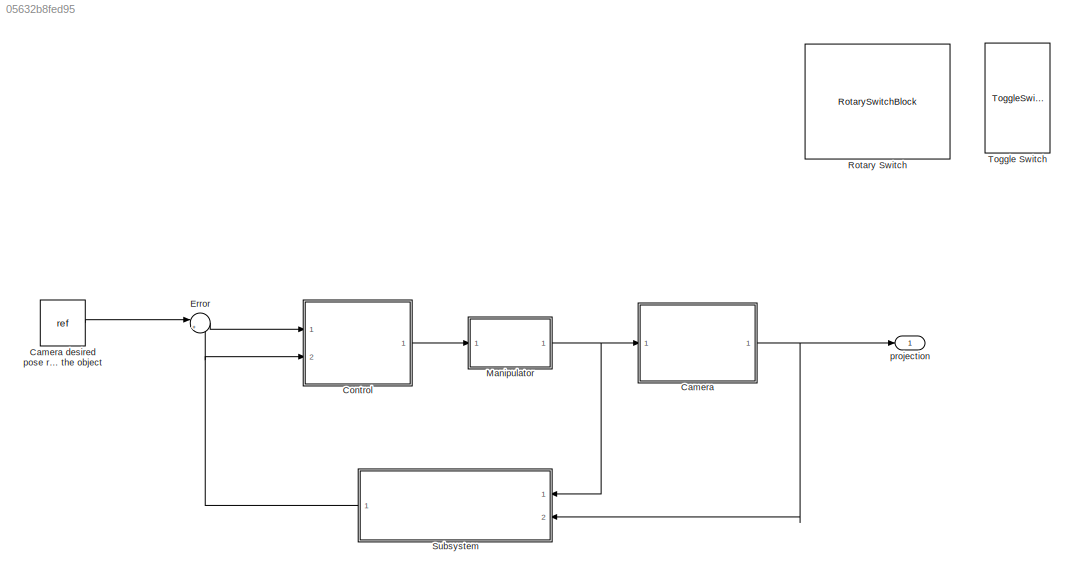
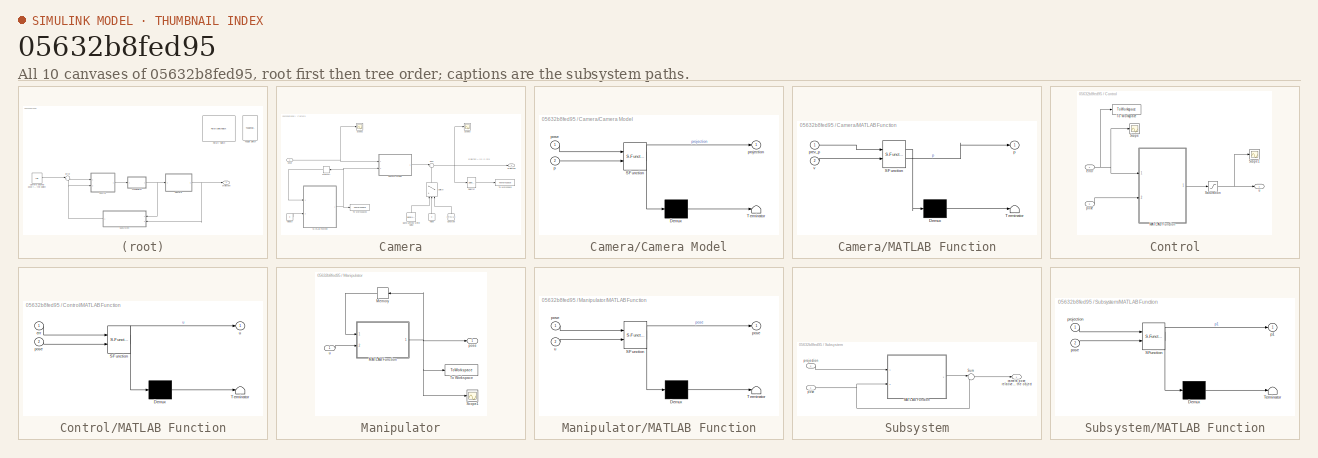
[diagram: thumbnail index - all 10 canvases of the model, root first then tree order]
MODEL slx_05632b8fed95
KIND model
CONFIG AbsTol = auto
CONFIG EnableMultiTasking = off
CONFIG FixedStep = auto
CONFIG MaxStep = auto
CONFIG MinStep = auto
CONFIG RelTol = 1e-3
CONFIG SampleTimeConstraint = Unconstrained
CONFIG SolverName = VariableStepAuto
CONFIG StartTime = 0.0
CONFIG StopTime = 10
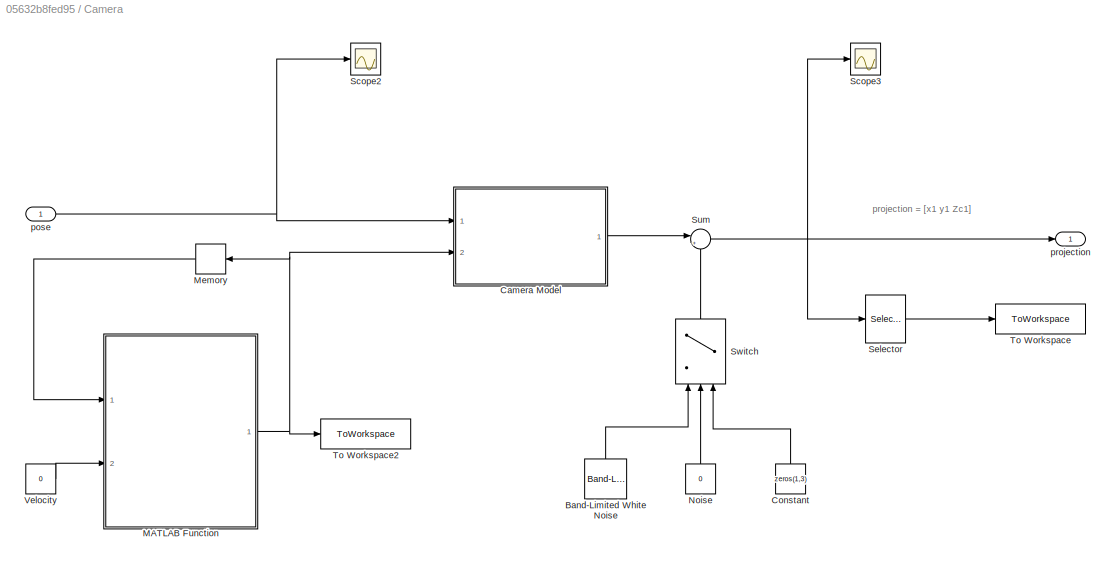
BLOCK [SubSystem] Camera
  Ports = [1, 1]
  RequestExecContextInheritance = off
BLOCK [Constant] Camera desired pose relative to the object
  SampleTime = -1
  Value = ref
BLOCK [Reference] Camera/Band-Limited White Noise  REF=simulink/Sources/Band-Limited
White Noise
  NameLocation = right
  Ports = [0, 1]
  SourceBlock = simulink/Sources/Band-Limited\nWhite Noise
  SourceProductBaseCode = SL
  SourceType = Band-Limited White Noise.
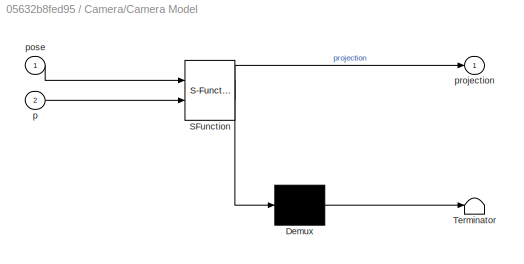
BLOCK [SubSystem] Camera/Camera Model
  ErrorFcn = Stateflow.Translate.translate
  PermitHierarchicalResolution = ExplicitOnly
  Ports = [2, 1]
  RequestExecContextInheritance = off
  SFBlockType = MATLAB Function
  TreatAsAtomicUnit = on
BLOCK [Demux] Camera/Camera Model/ Demux 
  Outputs = 1
  Ports = [1, 1]
BLOCK [S-Function] Camera/Camera Model/ SFunction 
  EnableBusSupport = on
  FunctionName = sf_sfun
  Parameters = O,f
  PortCounts = [2 2]
  Ports = [2, 2]
  SFcnIsStateOwnerBlock = off
  SFunctionDeploymentMode = off
  Tag = Stateflow S-Function 2
BLOCK [Terminator] Camera/Camera Model/ Terminator 
BLOCK [Inport] Camera/Camera Model/p
  Port = 2
BLOCK [Inport] Camera/Camera Model/pose
BLOCK [Outport] Camera/Camera Model/projection
BLOCK [Constant] Camera/Constant
  NameLocation = right
  Value = zeros(1,3)
BLOCK [SubSystem] Camera/MATLAB Function
  ErrorFcn = Stateflow.Translate.translate
  PermitHierarchicalResolution = ExplicitOnly
  Ports = [2, 1]
  RequestExecContextInheritance = off
  SFBlockType = MATLAB Function
  SystemSampleTime = dT
  TreatAsAtomicUnit = on
BLOCK [Demux] Camera/MATLAB Function/ Demux 
  Outputs = 1
  Ports = [1, 1]
BLOCK [S-Function] Camera/MATLAB Function/ SFunction 
  EnableBusSupport = on
  FunctionName = sf_sfun
  Parameters = dT
  PortCounts = [2 2]
  Ports = [2, 2]
  SFcnIsStateOwnerBlock = off
  SFunctionDeploymentMode = off
  Tag = Stateflow S-Function 4
BLOCK [Terminator] Camera/MATLAB Function/ Terminator 
BLOCK [Outport] Camera/MATLAB Function/p
BLOCK [Inport] Camera/MATLAB Function/prev_p
BLOCK [Inport] Camera/MATLAB Function/v
  Port = 2
BLOCK [Memory] Camera/Memory
  InitialCondition = [p1]
  NameLocation = top
BLOCK [Constant] Camera/Noise
  NameLocation = right
  Value = 0
BLOCK [Scope] Camera/Scope2
  Floating = off
  NumInputPorts = 1
  Ports = [1]
  ScopeSpecificationString = Simulink.scopes.TimeScopeBlockCfg('CurrentConfiguration', extmgr.ConfigurationSet(extmgr.Configuration('Core','General UI',true),extmgr.Configuration('Core','Source UI',true),extmgr.Configuration('Sources','WiredSimulink',true,'DataLoggingVariableName','ScopeData3'),extmgr.Configuration('Visuals','Time Domain',true,'SerializedDisplays',{struct('MinYLimReal','-1.12077','MaxYLimReal','2.54863','YLab...<+1410ch>
BLOCK [Scope] Camera/Scope3
  Floating = off
  NumInputPorts = 1
  Ports = [1]
  ScopeSpecificationString = Simulink.scopes.TimeScopeBlockCfg('CurrentConfiguration', extmgr.ConfigurationSet(extmgr.Configuration('Core','General UI',true),extmgr.Configuration('Core','Source UI',true),extmgr.Configuration('Sources','WiredSimulink',true,'DataLoggingVariableName','ScopeData3'),extmgr.Configuration('Visuals','Time Domain',true,'SerializedDisplays',{struct('MinYLimReal','-0.63244','MaxYLimReal','3.15932','YLab...<+1568ch>
BLOCK [Selector] Camera/Selector
  IndexOptions = Index vector (dialog)
  Indices = [1 2]
  InputPortWidth = 3
  OutputSizes = 1
  Ports = [1, 1]
BLOCK [Sum] Camera/Sum
  Inputs = |++
  Ports = [2, 1]
BLOCK [Switch] Camera/Switch
  Criteria = u2 > Threshold
  InputSameDT = off
  NameLocation = right
  SaturateOnIntegerOverflow = off
BLOCK [ToWorkspace] Camera/To Workspace
  FixptAsFi = on
  MaxDataPoints = inf
  Ports = [1]
  SampleTime = 0.1
  VariableName = proj1
BLOCK [ToWorkspace] Camera/To Workspace2
  FixptAsFi = on
  MaxDataPoints = inf
  Ports = [1]
  SampleTime = 0.1
  VariableName = p
BLOCK [Constant] Camera/Velocity
  SampleTime = dT
  Value = 0
BLOCK [Inport] Camera/pose
BLOCK [Outport] Camera/projection
BLOCK [SubSystem] Control
  Ports = [2, 1]
  RequestExecContextInheritance = off
BLOCK [SubSystem] Control/MATLAB Function
  ErrorFcn = Stateflow.Translate.translate
  PermitHierarchicalResolution = ExplicitOnly
  Ports = [2, 1]
  RequestExecContextInheritance = off
  SFBlockType = MATLAB Function
  SystemSampleTime = 1/200
  TreatAsAtomicUnit = on
BLOCK [Demux] Control/MATLAB Function/ Demux 
  Outputs = 1
  Ports = [1, 1]
BLOCK [S-Function] Control/MATLAB Function/ SFunction 
  EnableBusSupport = on
  FunctionName = sf_sfun
  Parameters = Kp,ref
  PortCounts = [2 2]
  Ports = [2, 2]
  SFcnIsStateOwnerBlock = off
  SFunctionDeploymentMode = off
  Tag = Stateflow S-Function 1
BLOCK [Terminator] Control/MATLAB Function/ Terminator 
BLOCK [Inport] Control/MATLAB Function/err
BLOCK [Inport] Control/MATLAB Function/pose
  Port = 2
BLOCK [Outport] Control/MATLAB Function/u
BLOCK [Saturate] Control/Saturation
BLOCK [Scope] Control/Scope
  Floating = off
  NumInputPorts = 1
  Ports = [1]
  ScopeSpecificationString = Simulink.scopes.TimeScopeBlockCfg('CurrentConfiguration', extmgr.ConfigurationSet(extmgr.Configuration('Core','General UI',true),extmgr.Configuration('Core','Source UI',true),extmgr.Configuration('Sources','WiredSimulink',true,'DataLoggingVariableName','ScopeData1'),extmgr.Configuration('Visuals','Time Domain',true,'SerializedDisplays',{struct('MinYLimReal','-0.97388','MaxYLimReal','1.77487','YLab...<+1650ch>
BLOCK [Scope] Control/Scope1
  Floating = off
  NumInputPorts = 1
  Ports = [1]
  ScopeSpecificationString = Simulink.scopes.TimeScopeBlockCfg('CurrentConfiguration', extmgr.ConfigurationSet(extmgr.Configuration('Core','General UI',true),extmgr.Configuration('Core','Source UI',true),extmgr.Configuration('Sources','WiredSimulink',true,'DataLoggingVariableName','ScopeData2'),extmgr.Configuration('Visuals','Time Domain',true,'SerializedDisplays',{struct('MinYLimReal','-0.0625','MaxYLimReal','0.5625','YLabel...<+1495ch>
BLOCK [ToWorkspace] Control/To Workspace
  FixptAsFi = on
  MaxDataPoints = inf
  Ports = [1]
  SampleTime = 0.1
  VariableName = error
BLOCK [Inport] Control/error
BLOCK [Inport] Control/pose
  Port = 2
BLOCK [Outport] Control/u
BLOCK [Sum] Error
  Inputs = |+-
  Ports = [2, 1]
BLOCK [SubSystem] Manipulator
  Ports = [1, 1]
  RequestExecContextInheritance = off
BLOCK [SubSystem] Manipulator/MATLAB Function
  ErrorFcn = Stateflow.Translate.translate
  PermitHierarchicalResolution = ExplicitOnly
  Ports = [2, 1]
  RequestExecContextInheritance = off
  SFBlockType = MATLAB Function
  SystemSampleTime = 1/200
  TreatAsAtomicUnit = on
BLOCK [Demux] Manipulator/MATLAB Function/ Demux 
  Outputs = 1
  Ports = [1, 1]
BLOCK [S-Function] Manipulator/MATLAB Function/ SFunction 
  EnableBusSupport = on
  FunctionName = sf_sfun
  Parameters = dT
  PortCounts = [2 2]
  Ports = [2, 2]
  SFcnIsStateOwnerBlock = off
  SFunctionDeploymentMode = off
  Tag = Stateflow S-Function 3
BLOCK [Terminator] Manipulator/MATLAB Function/ Terminator 
BLOCK [Outport] Manipulator/MATLAB Function/pose
BLOCK [Inport] Manipulator/MATLAB Function/pose 
BLOCK [Inport] Manipulator/MATLAB Function/u
  Port = 2
BLOCK [Memory] Manipulator/Memory
  InitialCondition = init_pose
  NameLocation = top
BLOCK [Scope] Manipulator/Scope1
  Floating = off
  NumInputPorts = 1
  Ports = [1]
  ScopeSpecificationString = Simulink.scopes.TimeScopeBlockCfg('CurrentConfiguration', extmgr.ConfigurationSet(extmgr.Configuration('Core','General UI',true),extmgr.Configuration('Core','Source UI',true),extmgr.Configuration('Sources','WiredSimulink',true,'DataLoggingVariableName','ScopeData2'),extmgr.Configuration('Visuals','Time Domain',true,'SerializedDisplays',{struct('MinYLimReal','-0.19635','MaxYLimReal','1.76715','YLab...<+1638ch>
BLOCK [ToWorkspace] Manipulator/To Workspace
  FixptAsFi = on
  MaxDataPoints = inf
  Ports = [1]
  SampleTime = 0.1
  VariableName = pose
BLOCK [Outport] Manipulator/pose
BLOCK [Inport] Manipulator/u
BLOCK [RotarySwitchBlock] Rotary Switch
  LabelPosition = Bottom
BLOCK [SubSystem] Subsystem
  NameLocation = top
  Ports = [2, 1]
  RequestExecContextInheritance = off
BLOCK [SubSystem] Subsystem/MATLAB Function
  ErrorFcn = Stateflow.Translate.translate
  PermitHierarchicalResolution = ExplicitOnly
  Ports = [2, 1]
  RequestExecContextInheritance = off
  SFBlockType = MATLAB Function
  TreatAsAtomicUnit = on
BLOCK [Demux] Subsystem/MATLAB Function/ Demux 
  Outputs = 1
  Ports = [1, 1]
BLOCK [S-Function] Subsystem/MATLAB Function/ SFunction 
  EnableBusSupport = on
  FunctionName = sf_sfun
  Parameters = O,f
  PortCounts = [2 2]
  Ports = [2, 2]
  SFcnIsStateOwnerBlock = off
  SFunctionDeploymentMode = off
  Tag = Stateflow S-Function 5
BLOCK [Terminator] Subsystem/MATLAB Function/ Terminator 
BLOCK [Outport] Subsystem/MATLAB Function/p1
BLOCK [Inport] Subsystem/MATLAB Function/pose
  Port = 2
BLOCK [Inport] Subsystem/MATLAB Function/projection
BLOCK [Sum] Subsystem/Sum
  Inputs = |-+
  Ports = [2, 1]
BLOCK [Outport] Subsystem/camera pose relative to the object
BLOCK [Inport] Subsystem/pose
BLOCK [Inport] Subsystem/projection
  Port = 2
BLOCK [ToggleSwitchBlock] Toggle Switch
  LabelPosition = Bottom
BLOCK [Outport] projection
ANNOTATION Camera: projection = [x1 y1 Zc1]
LINE Camera desired pose relative to the object:1 -> Error:1
LINE Camera/Band-Limited White Noise:1 -> Camera/Switch:1
LINE Camera/Camera Model:1 -> Camera/Sum:1
LINE Camera/Constant:1 -> Camera/Switch:3
NET Camera/MATLAB Function:1 -> Camera/Camera Model:2, Camera/Memory:1, Camera/To Workspace2:1
LINE Camera/Memory:1 -> Camera/MATLAB Function:1
LINE Camera/Noise:1 -> Camera/Switch:2
LINE Camera/Selector:1 -> Camera/To Workspace:1
NET Camera/Sum:1 -> Camera/Scope3:1, Camera/Selector:1, Camera/projection:1
LINE Camera/Switch:1 -> Camera/Sum:2
LINE Camera/Velocity:1 -> Camera/MATLAB Function:2
NET Camera/pose:1 -> Camera/Camera Model:1, Camera/Scope2:1
NET Camera:1 -> Subsystem:2, projection:1
LINE Control/MATLAB Function:1 -> Control/Saturation:1
NET Control/Saturation:1 -> Control/Scope1:1, Control/u:1
NET Control/error:1 -> Control/MATLAB Function:1, Control/Scope:1, Control/To Workspace:1
LINE Control/pose:1 -> Control/MATLAB Function:2
LINE Control:1 -> Manipulator:1
LINE Error:1 -> Control:1
NET Manipulator/MATLAB Function:1 -> Manipulator/Memory:1, Manipulator/Scope1:1, Manipulator/To Workspace:1, Manipulator/pose:1
LINE Manipulator/Memory:1 -> Manipulator/MATLAB Function:1
LINE Manipulator/u:1 -> Manipulator/MATLAB Function:2
NET Manipulator:1 -> Camera:1, Subsystem:1
LINE Subsystem/MATLAB Function:1 -> Subsystem/Sum:1
LINE Subsystem/Sum:1 -> Subsystem/camera pose relative to the object:1
NET Subsystem/pose:1 -> Subsystem/MATLAB Function:2, Subsystem/Sum:2
LINE Subsystem/projection:1 -> Subsystem/MATLAB Function:1
NET Subsystem:1 -> Control:2, Error:2
note: NET lines group one-source signal fan-out (src -> all destinations, sorted); 1:1 wires keep LINE
CHART Control/MATLAB Function states=1 transitions=1
  STATE_LABEL 'eML_blk_kernel()'
  STATE_LABEL "SCRIPT:\nfunction u = fcn(err, pose, Kp, ref)\n\n% pose : relative pose between camera and object\n% ref : desired relative pose between camera and object\n% err : error between desired and actual pose of the camera relative to the object\n\nang = zeros(3, 1);\nang(1) = pose(4) - ref(4);  % camera's orientation \nang(2) = pose(5) - ref(5);\nang(3) = pose(6) - ref(6);\n\n% Trasformation\nRx = [1   0       0   ;...<+602ch>"
CHART Camera/Camera Model states=1 transitions=1
  STATE_LABEL 'eML_blk_kernel()'
  STATE_LABEL "SCRIPT:\nfunction projection = proj(f, O, pose, p)\n% function that computes the projection of the point in the image plane\n% f : focal lenght\n% O : world origin frame\n% pose: pose of the camera\n% p : point position\n\nd = pose(1:3) - O;    % camera's position in world frame\nang = pose(4:6);      % camera's orientation \np1 = p;               \n\n\n%%\nRx = [1   0       0   ;\n      0 cos(ang(1)) -sin(ang(1...<+703ch>"
CHART Manipulator/MATLAB Function states=1 transitions=1
  STATE_LABEL 'eML_blk_kernel()'
  STATE_LABEL 'SCRIPT:\nfunction pose = fcn(pose, u, dT)\n\nposition = zeros(3, 1);\nangle = zeros(3, 1);\nang = u(4:6);\n\nRx = [1   0       0   ;\n      0 cos(ang(1)) -sin(ang(1));\n      0 sin(ang(1)) cos(ang(1))];\n\nRy = [cos(ang(2)) 0 sin(ang(2)) ;\n       0     1   0    ;\n     -sin(ang(2)) 0 cos(ang(2))];\n \nRz = [cos(ang(3)) -sin(ang(3)) 0;\n      sin(ang(3))  cos(ang(3)) 0;\n       0      0     1];\n\nJ1 = Rz * Ry * Rx;...<+297ch>'
CHART Camera/MATLAB Function states=1 transitions=1
  STATE_LABEL 'eML_blk_kernel()'
  STATE_LABEL 'SCRIPT:\nfunction p = fcn(prev_p ,v, dT)\n\np1 = prev_p;\n\np1 = p1 + [0; v; 0] * dT;\n\np = p1;\n'
CHART Subsystem/MATLAB Function states=1 transitions=1
  STATE_LABEL 'eML_blk_kernel()'
  STATE_LABEL "SCRIPT:\nfunction p1  = fcn(projection, pose, O, f)\n% function that computes the point position in camera frame from the point\n% projection in the image plane \n% pose : pose of the camera \n\nx1 = projection(1); % x projection in the image plane\ny1 = projection(2); % y projection in the image plane \nZc1 = projection(3); % point depth in camera frame \n\nd = pose(1:3) - O;    % camera's position in worl...<+853ch>"
CHART  states=0 transitions=0
CHART  states=0 transitions=0
CHART  states=0 transitions=0
CHART  states=0 transitions=0
CHART  states=0 transitions=0
